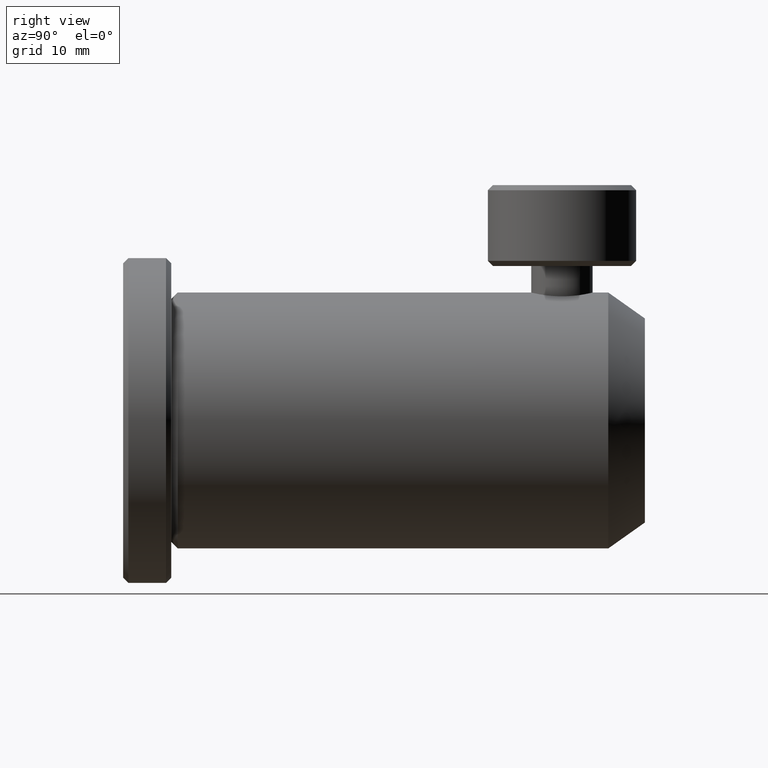
[diagram: clean part render]
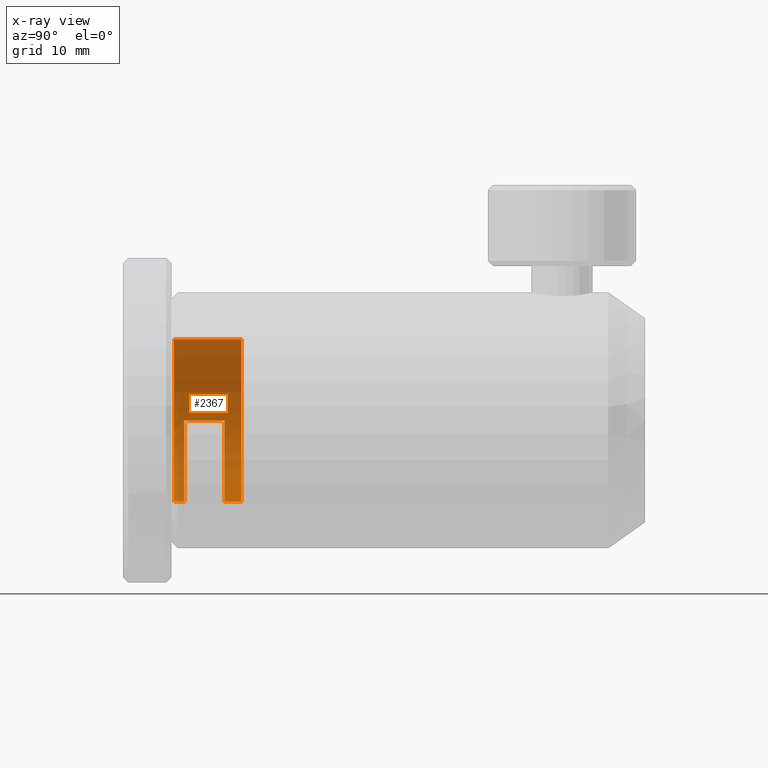
[diagram: x-ray — body ghosted, one internal face saturated and labeled with its STEP entity id]
A machine part, right view, then the same camera in x-ray: the body is ghosted and one INTERNAL B-rep face — a face not visible from any outside direction — is saturated and labeled: STEP entity #2367.
In plain terms, the highlighted cylindrical surface (partial cylindrical patch) has radius 7.9375 mm, axis along (-0, 1, -0).
Its self-contained STEP definition (entity closure, byte-faithful):
#17 = VERTEX_POINT ( 'NONE', #3093 ) ;
#52 = FACE_OUTER_BOUND ( 'NONE', #682, .T. ) ;
#64 = CARTESIAN_POINT ( 'NONE',  ( -24.11097407575043800, -9.641817909465073600, 8.753403349700374000 ) ) ;
#94 = LINE ( 'NONE', #2436, #1472 ) ;
#159 = VERTEX_POINT ( 'NONE', #206 ) ;
#164 = AXIS2_PLACEMENT_3D ( 'NONE', #2805, #1706, #2518 ) ;
#179 = LINE ( 'NONE', #290, #357 ) ;
#187 = CIRCLE ( 'NONE', #3136, 7.937499999999932500 ) ;
#206 = CARTESIAN_POINT ( 'NONE',  ( -16.77690416192938400, -7.990831564526651200, 19.78349999999993300 ) ) ;
#235 = AXIS2_PLACEMENT_3D ( 'NONE', #1663, #2186, #798 ) ;
#290 = CARTESIAN_POINT ( 'NONE',  ( -16.77690416192938400, 10.85402768764679000, 19.78349999999993300 ) ) ;
#344 = LINE ( 'NONE', #2224, #2275 ) ;
#352 = ORIENTED_EDGE ( 'NONE', *, *, #3205, .T. ) ;
#357 = VECTOR ( 'NONE', #2265, 1000.000000000000000 ) ;
#438 = ORIENTED_EDGE ( 'NONE', *, *, #3127, .F. ) ;
#633 = CARTESIAN_POINT ( 'NONE',  ( -17.53150731147431100, -9.641795161219860700, 3.908500048977658500 ) ) ;
#662 = CARTESIAN_POINT ( 'NONE',  ( -24.71440416190851500, -9.641831564526649200, 11.84598182827097400 ) ) ;
#682 = EDGE_LOOP ( 'NONE', ( #1440, #1161, #438, #3202, #1634, #2103, #352, #3528 ) ) ;
#725 = DIRECTION ( 'NONE',  ( 0.0000000000000000000, 0.0000000000000000000, 1.000000000000000000 ) ) ;
#798 = DIRECTION ( 'NONE',  ( 0.0000000000000000000, 0.0000000000000000000, 1.000000000000000000 ) ) ;
#827 = CARTESIAN_POINT ( 'NONE',  ( -24.71440416190851900, -13.57883156452665200, 11.84598182827097200 ) ) ;
#907 = CARTESIAN_POINT ( 'NONE',  ( -16.77690465237445100, -9.641799069448357100, 3.908500000000082200 ) ) ;
#916 = EDGE_CURVE ( 'NONE', #2589, #1654, #187, .T. ) ;
#918 = CARTESIAN_POINT ( 'NONE',  ( -24.71440416190851500, -9.641831564526649200, 11.84598182827097400 ) ) ;
#1034 = CARTESIAN_POINT ( 'NONE',  ( -24.71440416190851900, -13.57883156452665200, 11.84598182827097200 ) ) ;
#1149 = DIRECTION ( 'NONE',  ( -0.0000000000000000000, 1.000000000000000000, -0.0000000000000000000 ) ) ;
#1159 = CARTESIAN_POINT ( 'NONE',  ( -20.06749764501243400, -9.641798948870517800, 4.567251640193409100 ) ) ;
#1161 = ORIENTED_EDGE ( 'NONE', *, *, #2149, .T. ) ;
#1175 = CARTESIAN_POINT ( 'NONE',  ( -24.63137267307513800, -9.641825685084381100, 10.54089006473567200 ) ) ;
#1290 = CARTESIAN_POINT ( 'NONE',  ( -24.50780756226441400, -13.57884049867822000, 9.768356392796640400 ) ) ;
#1440 = ORIENTED_EDGE ( 'NONE', *, *, #916, .F. ) ;
#1472 = VECTOR ( 'NONE', #2420, 1000.000000000000000 ) ;
#1524 = B_SPLINE_CURVE_WITH_KNOTS ( 'NONE', 3,
 ( #907, #633, #3397, #1159, #2520, #1745, #2250, #2842, #2007, #64, #3348, #1175, #1978, #918 ),
 .UNSPECIFIED., .F., .F.,
 ( 4, 2, 2, 2, 2, 2, 4 ),
 ( 0.5002174648131161300, 0.6251630986098371000, 0.7501087324065580700, 0.8125815493049185500, 0.8750543662032790300, 0.9375271831016395200, 1.000000000000000000 ),
 .UNSPECIFIED. ) ;
#1551 = CARTESIAN_POINT ( 'NONE',  ( -16.77690416192945500, -13.57886015376989700, 3.908496094165017100 ) ) ;
#1554 = DIRECTION ( 'NONE',  ( -0.0000000000000000000, 1.000000000000000000, -0.0000000000000000000 ) ) ;
#1596 = CARTESIAN_POINT ( 'NONE',  ( -16.77690416192945500, -13.57886015376989700, 3.908496094165017100 ) ) ;
#1607 = CARTESIAN_POINT ( 'NONE',  ( -21.65486010448266900, -13.57885538893081900, 5.498631395765011500 ) ) ;
#1634 = ORIENTED_EDGE ( 'NONE', *, *, #2760, .F. ) ;
#1654 = VERTEX_POINT ( 'NONE', #2274 ) ;
#1663 = CARTESIAN_POINT ( 'NONE',  ( -16.77690416192938400, -7.990831564526651200, 11.84600000000000000 ) ) ;
#1706 = DIRECTION ( 'NONE',  ( -0.0000000000000000000, 1.000000000000000000, -0.0000000000000000000 ) ) ;
#1742 = VERTEX_POINT ( 'NONE', #662 ) ;
#1745 = CARTESIAN_POINT ( 'NONE',  ( -22.15963035927529400, -9.641805773461667800, 5.989373879650159400 ) ) ;
#1794 = B_SPLINE_CURVE_WITH_KNOTS ( 'NONE', 3,
 ( #1034, #1819, #1290, #2409, #2134, #1607, #3538, #1872, #3240, #1596 ),
 .UNSPECIFIED., .F., .F.,
 ( 4, 2, 2, 2, 4 ),
 ( 0.0000000000000000000, 0.1250000001448587900, 0.2500000002897175800, 0.3750000004345763700, 0.5000000005794351700 ),
 .UNSPECIFIED. ) ;
#1812 = LINE ( 'NONE', #2394, #2719 ) ;
#1819 = CARTESIAN_POINT ( 'NONE',  ( -24.71440178323126700, -13.57883632940748700, 10.80696398883896100 ) ) ;
#1823 = VERTEX_POINT ( 'NONE', #1551 ) ;
#1872 = CARTESIAN_POINT ( 'NONE',  ( -18.85452355790969700, -13.57885955820154000, 4.115083294923447700 ) ) ;
#1978 = CARTESIAN_POINT ( 'NONE',  ( -24.71440264701077200, -9.641828529937869900, 11.18426708954812200 ) ) ;
#2007 = CARTESIAN_POINT ( 'NONE',  ( -23.57251977138291100, -9.641813358169830700, 7.702046776336532100 ) ) ;
#2103 = ORIENTED_EDGE ( 'NONE', *, *, #3312, .T. ) ;
#2121 = EDGE_CURVE ( 'NONE', #1742, #2288, #94, .T. ) ;
#2134 = CARTESIAN_POINT ( 'NONE',  ( -23.12425093719027200, -13.57885062404999000, 6.968018864512801600 ) ) ;
#2149 = EDGE_CURVE ( 'NONE', #2589, #1823, #1812, .T. ) ;
#2186 = DIRECTION ( 'NONE',  ( -0.0000000000000000000, 1.000000000000000000, -0.0000000000000000000 ) ) ;
#2224 = CARTESIAN_POINT ( 'NONE',  ( -16.77690416192938400, 10.85402768764679000, 3.908500000000066300 ) ) ;
#2250 = CARTESIAN_POINT ( 'NONE',  ( -22.54630547731287400, -9.641807479903418400, 6.366399506067258700 ) ) ;
#2265 = DIRECTION ( 'NONE',  ( -0.0000000000000000000, 1.000000000000000000, -0.0000000000000000000 ) ) ;
#2274 = CARTESIAN_POINT ( 'NONE',  ( -16.77690416192938400, -14.59483156452664700, 19.78349999999993300 ) ) ;
#2275 = VECTOR ( 'NONE', #1149, 1000.000000000000000 ) ;
#2288 = VERTEX_POINT ( 'NONE', #827 ) ;
#2367 = ADVANCED_FACE ( 'NONE', ( #52 ), #3459, .F. ) ;
#2373 = CARTESIAN_POINT ( 'NONE',  ( -16.77690416192938400, -14.59483156452664700, 11.84600000000000000 ) ) ;
#2394 = CARTESIAN_POINT ( 'NONE',  ( -16.77690416192938400, 10.85402768764679000, 3.908500000000066300 ) ) ;
#2409 = CARTESIAN_POINT ( 'NONE',  ( -23.71257569279444200, -13.57884764599946500, 7.848506151970828300 ) ) ;
#2420 = DIRECTION ( 'NONE',  ( 0.0000000000000000000, -1.000000000000000000, 0.0000000000000000000 ) ) ;
#2436 = CARTESIAN_POINT ( 'NONE',  ( -24.71440416190851500, -11.61033156452665300, 11.84598182827097200 ) ) ;
#2518 = DIRECTION ( 'NONE',  ( 0.0000000000000000000, 0.0000000000000000000, 1.000000000000000000 ) ) ;
#2520 = CARTESIAN_POINT ( 'NONE',  ( -20.94571358167017300, -9.641801223342280700, 5.011930882989041400 ) ) ;
#2589 = VERTEX_POINT ( 'NONE', #2716 ) ;
#2671 = CIRCLE ( 'NONE', #235, 7.937499999999932500 ) ;
#2716 = CARTESIAN_POINT ( 'NONE',  ( -16.77690416192938400, -14.59483156452664700, 3.908500000000066300 ) ) ;
#2719 = VECTOR ( 'NONE', #3225, 1000.000000000000000 ) ;
#2760 = EDGE_CURVE ( 'NONE', #17, #1742, #1524, .T. ) ;
#2805 = CARTESIAN_POINT ( 'NONE',  ( -16.77690416192938400, 10.85402768764679000, 11.84600000000000000 ) ) ;
#2842 = CARTESIAN_POINT ( 'NONE',  ( -23.25278794946443000, -9.641811272257500700, 7.222695970971402700 ) ) ;
#2918 = CARTESIAN_POINT ( 'NONE',  ( -16.77690416192938400, -7.990831564526651200, 3.908500000000066300 ) ) ;
#3052 = VERTEX_POINT ( 'NONE', #2918 ) ;
#3093 = CARTESIAN_POINT ( 'NONE',  ( -16.77690465237445100, -9.641799069448357100, 3.908500000000082200 ) ) ;
#3127 = EDGE_CURVE ( 'NONE', #2288, #1823, #1794, .T. ) ;
#3136 = AXIS2_PLACEMENT_3D ( 'NONE', #2373, #1554, #725 ) ;
#3202 = ORIENTED_EDGE ( 'NONE', *, *, #2121, .F. ) ;
#3205 = EDGE_CURVE ( 'NONE', #3052, #159, #2671, .T. ) ;
#3225 = DIRECTION ( 'NONE',  ( -0.0000000000000000000, 1.000000000000000000, -0.0000000000000000000 ) ) ;
#3240 = CARTESIAN_POINT ( 'NONE',  ( -17.81591825903160100, -13.57886015381163600, 3.908492188329974600 ) ) ;
#3312 = EDGE_CURVE ( 'NONE', #17, #3052, #344, .T. ) ;
#3346 = EDGE_CURVE ( 'NONE', #1654, #159, #179, .T. ) ;
#3348 = CARTESIAN_POINT ( 'NONE',  ( -24.32958128532486300, -9.641820374847981200, 9.325472279408856500 ) ) ;
#3397 = CARTESIAN_POINT ( 'NONE',  ( -18.36051706045270000, -9.641795917809309600, 4.016546295019217900 ) ) ;
#3459 = CYLINDRICAL_SURFACE ( 'NONE', #164, 7.937499999999932500 ) ;
#3528 = ORIENTED_EDGE ( 'NONE', *, *, #3346, .F. ) ;
#3538 = CARTESIAN_POINT ( 'NONE',  ( -20.77437216183517400, -13.57885717576112900, 4.910309337041209900 ) ) ;